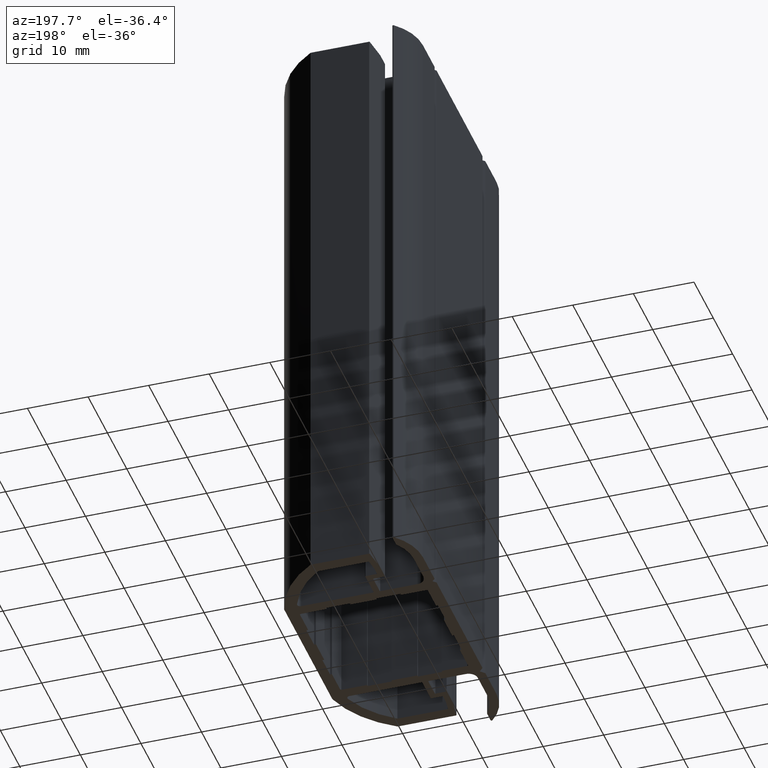
[diagram: clean part render]
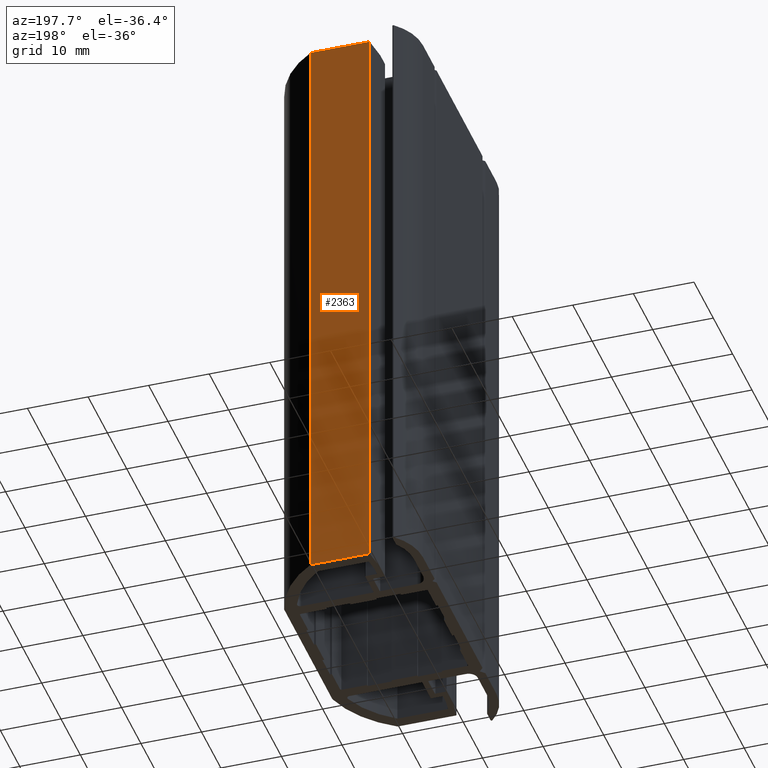
[diagram: same view with one face highlighted and labeled with its STEP entity id]
A machine part, auxiliary view. The second image highlights one B-rep face of the part: STEP entity #2363.
In plain terms, the highlighted planar face has unit normal (-0, 1, 0).
Its self-contained STEP definition (entity closure, byte-faithful):
#241=FACE_OUTER_BOUND('',#359,.T.);
#359=EDGE_LOOP('',(#1861,#1862,#1863,#1864));
#602=LINE('',#3850,#866);
#603=LINE('',#3854,#867);
#604=LINE('',#3856,#868);
#605=LINE('',#3857,#869);
#866=VECTOR('',#3145,10.);
#867=VECTOR('',#3150,10.);
#868=VECTOR('',#3151,10.);
#869=VECTOR('',#3152,10.);
#1103=VERTEX_POINT('',#3847);
#1104=VERTEX_POINT('',#3849);
#1105=VERTEX_POINT('',#3853);
#1106=VERTEX_POINT('',#3855);
#1423=EDGE_CURVE('',#1104,#1103,#602,.T.);
#1425=EDGE_CURVE('',#1105,#1103,#603,.T.);
#1426=EDGE_CURVE('',#1106,#1105,#604,.T.);
#1427=EDGE_CURVE('',#1104,#1106,#605,.T.);
#1861=ORIENTED_EDGE('',*,*,#1425,.F.);
#1862=ORIENTED_EDGE('',*,*,#1426,.F.);
#1863=ORIENTED_EDGE('',*,*,#1427,.F.);
#1864=ORIENTED_EDGE('',*,*,#1423,.T.);
#2256=PLANE('',#2579);
#2363=ADVANCED_FACE('',(#241),#2256,.T.);
#2579=AXIS2_PLACEMENT_3D('',#3852,#3148,#3149);
#3145=DIRECTION('',(0.,0.,1.));
#3148=DIRECTION('center_axis',(-1.84713416353036E-15,1.,0.));
#3149=DIRECTION('ref_axis',(-1.,-1.84713416353036E-15,0.));
#3150=DIRECTION('',(-1.,-1.84713416353036E-15,0.));
#3151=DIRECTION('',(0.,0.,1.));
#3152=DIRECTION('',(1.,1.84713416353036E-15,0.));
#3847=CARTESIAN_POINT('',(-4.71172177814634,22.5,100.));
#3849=CARTESIAN_POINT('',(-4.71172177814634,22.5,0.));
#3850=CARTESIAN_POINT('',(-4.71172177814634,22.5,0.));
#3852=CARTESIAN_POINT('Origin',(4.90510451672963,22.5,0.));
#3853=CARTESIAN_POINT('',(4.90510451672963,22.5,100.));
#3854=CARTESIAN_POINT('',(2.4525522583648,22.5,100.));
#3855=CARTESIAN_POINT('',(4.90510451672963,22.5,0.));
#3856=CARTESIAN_POINT('',(4.90510451672963,22.5,0.));
#3857=CARTESIAN_POINT('',(2.4525522583648,22.5,0.));